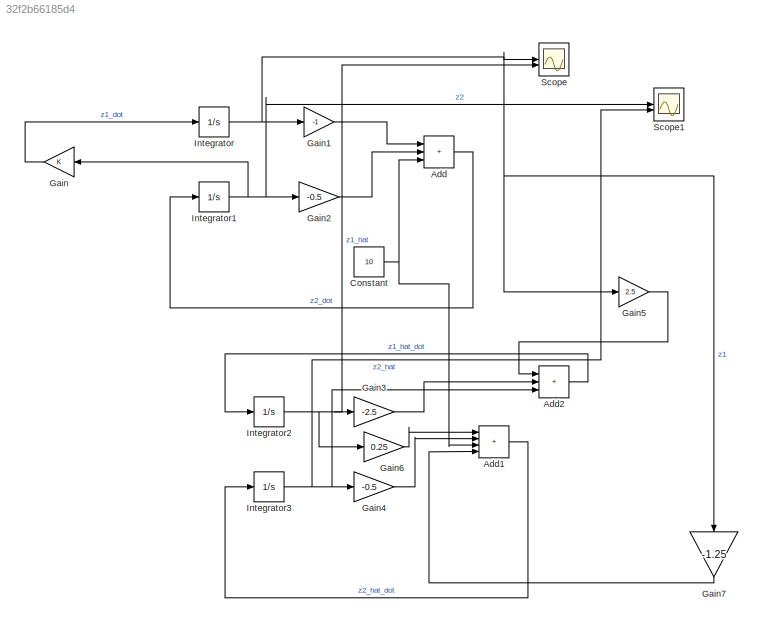
MODEL slx_32f2b66185d4
KIND model
CONFIG AbsTol = auto
CONFIG EnableMultiTasking = off
CONFIG FixedStep = auto
CONFIG MaxStep = auto
CONFIG MinStep = auto
CONFIG RelTol = 1e-3
CONFIG SampleTimeConstraint = Unconstrained
CONFIG SolverName = VariableStepAuto
CONFIG StartTime = 0.0
CONFIG StopTime = 20
BLOCK [Sum] Add
  IconShape = rectangular
  Inputs = +++
BLOCK [Sum] Add1
  IconShape = rectangular
  Inputs = ++++
BLOCK [Sum] Add2
  IconShape = rectangular
  Inputs = +++
BLOCK [Constant] Constant
  Value = 10
BLOCK [Gain] Gain
  NameLocation = top
BLOCK [Gain] Gain1
  Gain = -1
BLOCK [Gain] Gain2
  Gain = -0.5
BLOCK [Gain] Gain3
  Gain = -2.5
BLOCK [Gain] Gain4
  Gain = -0.5
BLOCK [Gain] Gain5
  Gain = 2.5
BLOCK [Gain] Gain6
  Gain = 0.25
BLOCK [Gain] Gain7
  Gain = -1.25
  NameLocation = left
BLOCK [Integrator] Integrator
BLOCK [Integrator] Integrator1
BLOCK [Integrator] Integrator2
BLOCK [Integrator] Integrator3
  InitialCondition = 1
BLOCK [Scope] Scope
  Floating = off
  NumInputPorts = 2
  ScopeSpecificationString = Simulink.scopes.TimeScopeBlockCfg('CurrentConfiguration', extmgr.ConfigurationSet(extmgr.Configuration('Core','General UI',true),extmgr.Configuration('Core','Source UI',true),extmgr.Configuration('Sources','WiredSimulink',true),extmgr.Configuration('Visuals','Time Domain',true,'SerializedDisplays',{struct('MinYLimReal','-1.08686','MaxYLimReal','15.49133','YLabelReal','','MinYLimMag','0.00000','Max...<+1379ch>
BLOCK [Scope] Scope1
  Floating = off
  NumInputPorts = 2
  ScopeSpecificationString = Simulink.scopes.TimeScopeBlockCfg('CurrentConfiguration', extmgr.ConfigurationSet(extmgr.Configuration('Core','General UI',true),extmgr.Configuration('Core','Source UI',true),extmgr.Configuration('Sources','WiredSimulink',true,'DataLoggingVariableName','ScopeData1'),extmgr.Configuration('Visuals','Time Domain',true,'SerializedDisplays',{struct('MinYLimReal','-4.51023','MaxYLimReal','8.99266','YLab...<+1447ch>
LINE Add1:1 -> Integrator3:1
LINE Add2:1 -> Integrator2:1
LINE Add:1 -> Integrator1:1
NET Constant:1 -> Add1:3, Add:3
LINE Gain1:1 -> Add:1
LINE Gain2:1 -> Add:2
LINE Gain3:1 -> Add2:2
LINE Gain4:1 -> Add1:2
LINE Gain5:1 -> Add2:1
LINE Gain6:1 -> Add1:1
LINE Gain7:1 -> Add1:4
LINE Gain:1 -> Integrator:1
NET Integrator1:1 -> Gain2:1, Gain:1, Scope1:1
NET Integrator2:1 -> Gain3:1, Gain6:1, Scope:2
NET Integrator3:1 -> Add2:3, Gain4:1, Scope1:2
NET Integrator:1 -> Gain1:1, Gain5:1, Gain7:1, Scope:1
note: NET lines group one-source signal fan-out (src -> all destinations, sorted); 1:1 wires keep LINE
